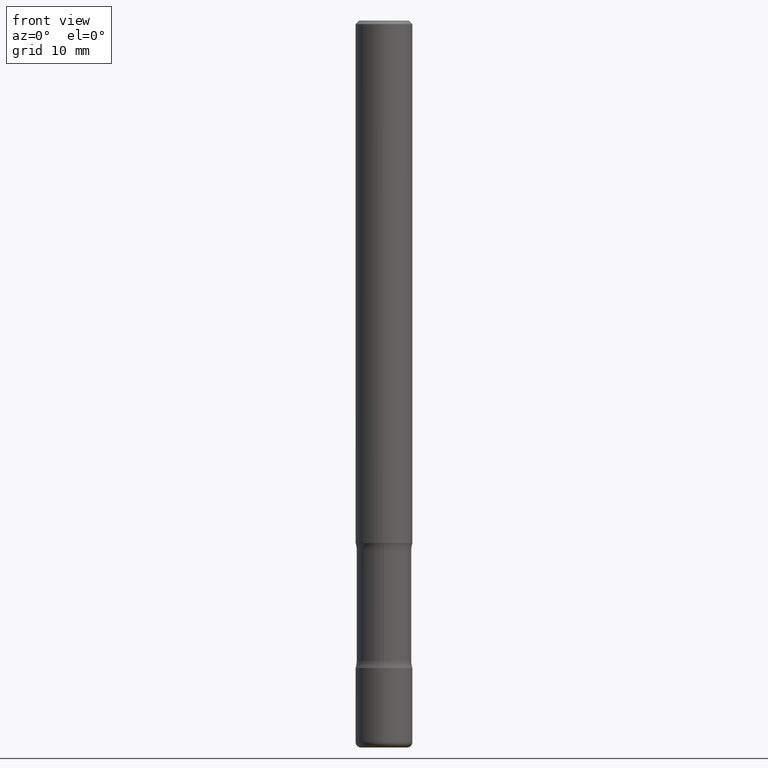
[diagram: clean part render]
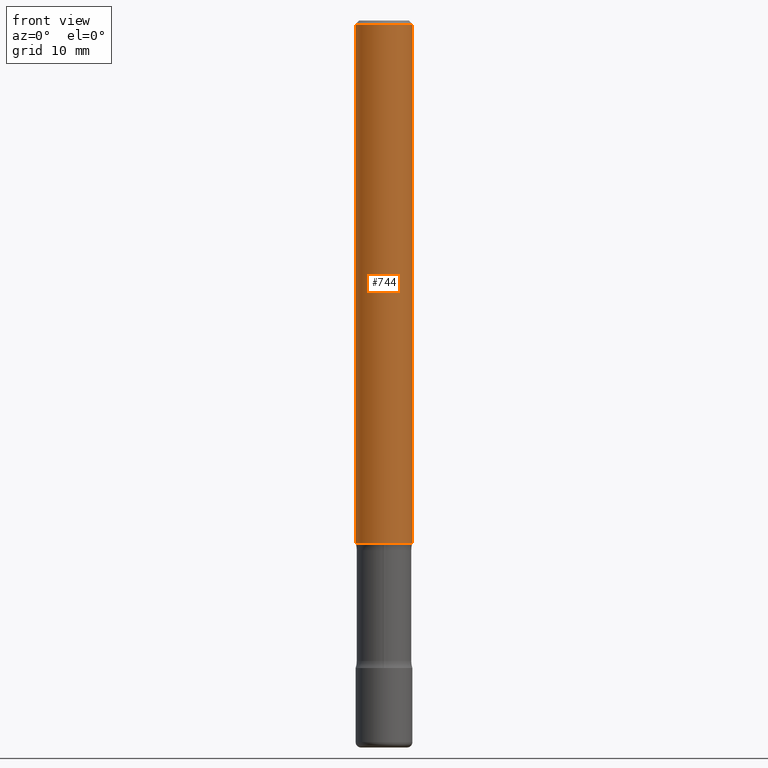
[diagram: same view with one face highlighted and labeled with its STEP entity id]
A machine part, front view. The second image highlights one B-rep face of the part: STEP entity #744.
In plain terms, the highlighted cylindrical surface (edge-blend (fillet) strip) has radius 3.9687 mm, axis along (-0, 0, 1).
Its self-contained STEP definition (entity closure, byte-faithful):
#5 = DIRECTION ( 'NONE',  ( 1.000000000000000000, -6.982962677686266711E-15, 4.876176775795936353E-29 ) ) ;
#20 = CARTESIAN_POINT ( 'NONE',  ( -0.1562500000000000000, -3.943696213350291140E-15, -2.875000000000000000 ) ) ;
#53 = CARTESIAN_POINT ( 'NONE',  ( -0.1562499999999997780, 1.021258291611614495E-15, -0.02000000000000003511 ) ) ;
#64 = DIRECTION ( 'NONE',  ( 1.000000000000000000, -6.982962677686265133E-15, 0.000000000000000000 ) ) ;
#66 = ORIENTED_EDGE ( 'NONE', *, *, #216, .T. ) ;
#71 = LINE ( 'NONE', #696, #302 ) ;
#89 = EDGE_CURVE ( 'NONE', #301, #184, #71, .T. ) ;
#110 = AXIS2_PLACEMENT_3D ( 'NONE', #765, #513, #5 ) ;
#176 = ORIENTED_EDGE ( 'NONE', *, *, #499, .F. ) ;
#184 = VERTEX_POINT ( 'NONE', #247 ) ;
#216 = EDGE_CURVE ( 'NONE', #394, #301, #487, .T. ) ;
#241 = AXIS2_PLACEMENT_3D ( 'NONE', #693, #321, #64 ) ;
#247 = CARTESIAN_POINT ( 'NONE',  ( 0.1562499999999997780, -1.141782438928663133E-15, -0.02000000000000003511 ) ) ;
#254 = AXIS2_PLACEMENT_3D ( 'NONE', #753, #736, #489 ) ;
#263 = CYLINDRICAL_SURFACE ( 'NONE', #110, 0.1562499999999998612 ) ;
#293 = CARTESIAN_POINT ( 'NONE',  ( -0.1562499999999998612, 1.110223024625155554E-15, -7.685836078523284153E-30 ) ) ;
#301 = VERTEX_POINT ( 'NONE', #755 ) ;
#302 = VECTOR ( 'NONE', #320, 39.37007874015748143 ) ;
#304 = EDGE_LOOP ( 'NONE', ( #530, #66, #733, #176 ) ) ;
#320 = DIRECTION ( 'NONE',  ( -2.445468806185136877E-29, 3.491481338843145188E-15, 1.000000000000000000 ) ) ;
#321 = DIRECTION ( 'NONE',  ( -2.445468806185136597E-29, 3.491481338843145583E-15, 1.000000000000000000 ) ) ;
#369 = VERTEX_POINT ( 'NONE', #53 ) ;
#394 = VERTEX_POINT ( 'NONE', #20 ) ;
#426 = FACE_OUTER_BOUND ( 'NONE', #304, .T. ) ;
#487 = CIRCLE ( 'NONE', #254, 0.1562500000000000000 ) ;
#489 = DIRECTION ( 'NONE',  ( 1.000000000000000000, -6.982962677686262766E-15, 0.000000000000000000 ) ) ;
#499 = EDGE_CURVE ( 'NONE', #369, #184, #571, .T. ) ;
#513 = DIRECTION ( 'NONE',  ( -2.445468806185136597E-29, 3.491481338843145583E-15, 1.000000000000000000 ) ) ;
#530 = ORIENTED_EDGE ( 'NONE', *, *, #632, .F. ) ;
#545 = DIRECTION ( 'NONE',  ( -2.445468806185136877E-29, 3.491481338843145188E-15, 1.000000000000000000 ) ) ;
#571 = CIRCLE ( 'NONE', #241, 0.1562499999999997780 ) ;
#632 = EDGE_CURVE ( 'NONE', #394, #369, #781, .T. ) ;
#693 = CARTESIAN_POINT ( 'NONE',  ( 4.890937612370281041E-31, -6.982962677686302702E-17, -0.02000000000000003511 ) ) ;
#696 = CARTESIAN_POINT ( 'NONE',  ( 0.1562499999999998612, -1.091087918388478187E-15, 7.619026212181143371E-30 ) ) ;
#733 = ORIENTED_EDGE ( 'NONE', *, *, #89, .T. ) ;
#736 = DIRECTION ( 'NONE',  ( -2.445468806185136597E-29, 3.491481338843145583E-15, 1.000000000000000000 ) ) ;
#744 = ADVANCED_FACE ( 'NONE', ( #426 ), #263, .T. ) ;
#753 = CARTESIAN_POINT ( 'NONE',  ( 7.030722817782267716E-29, -1.003800884917404311E-14, -2.875000000000000000 ) ) ;
#755 = CARTESIAN_POINT ( 'NONE',  ( 0.1562500000000000000, -1.112909676756252307E-14, -2.875000000000000000 ) ) ;
#765 = CARTESIAN_POINT ( 'NONE',  ( 0.000000000000000000, 0.000000000000000000, 0.000000000000000000 ) ) ;
#777 = VECTOR ( 'NONE', #545, 39.37007874015748143 ) ;
#781 = LINE ( 'NONE', #293, #777 ) ;